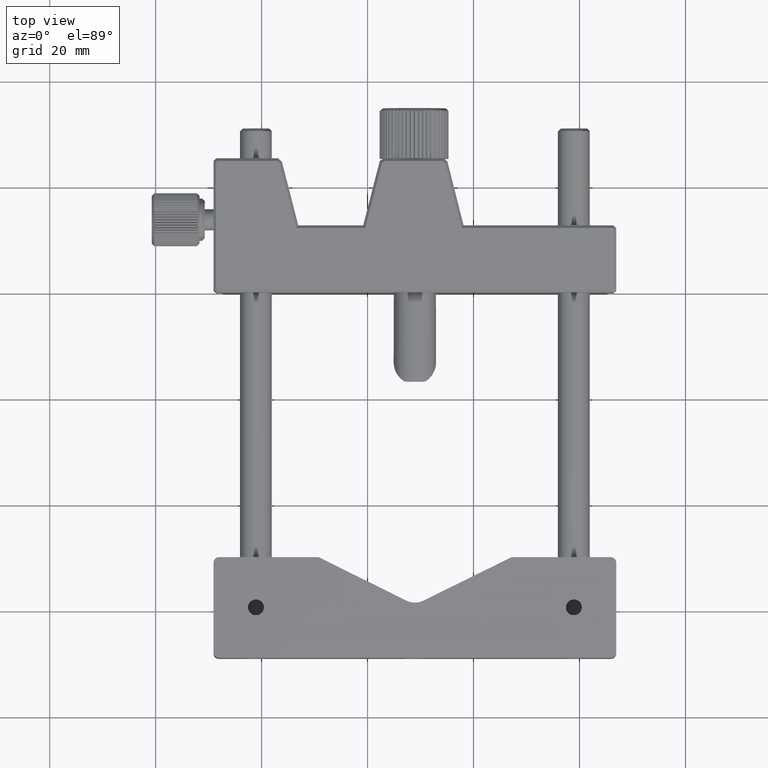
[diagram: clean part render]
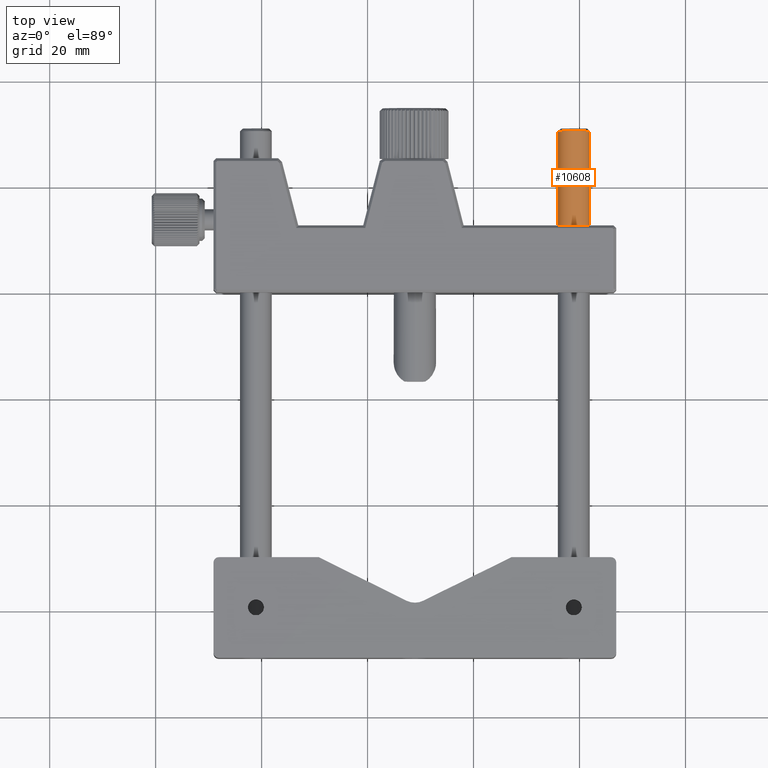
[diagram: same view with one face highlighted and labeled with its STEP entity id]
A machine part, top view. The second image highlights one B-rep face of the part: STEP entity #10608.
In plain terms, the highlighted cylindrical surface (edge-blend (fillet) strip) has radius 3 mm, axis along (0, 1, -0).
Its self-contained STEP definition (entity closure, byte-faithful):
#304 = CARTESIAN_POINT ( 'NONE',  ( 6.659892675158185504, 74.98886477512959914, 0.1416523706789302450 ) ) ;
#584 = VERTEX_POINT ( 'NONE', #304 ) ;
#747 = VECTOR ( 'NONE', #12673, 1000.000000000000000 ) ;
#857 = VERTEX_POINT ( 'NONE', #1094 ) ;
#1094 = CARTESIAN_POINT ( 'NONE',  ( 0.6665848719893747720, 57.13886477512959772, -0.1416523706789316328 ) ) ;
#1193 = LINE ( 'NONE', #16115, #13350 ) ;
#1650 = ORIENTED_EDGE ( 'NONE', *, *, #8563, .T. ) ;
#2835 = DIRECTION ( 'NONE',  ( -0.9988846338614685294, 0.000000000000000000, -0.04721745689297691950 ) ) ;
#3406 = EDGE_CURVE ( 'NONE', #584, #7832, #5265, .T. ) ;
#3710 = LINE ( 'NONE', #10162, #747 ) ;
#4813 = EDGE_CURVE ( 'NONE', #857, #7832, #1193, .T. ) ;
#5265 = CIRCLE ( 'NONE', #7615, 2.999999999999999112 ) ;
#5779 = ORIENTED_EDGE ( 'NONE', *, *, #15867, .T. ) ;
#5808 = CARTESIAN_POINT ( 'NONE',  ( 6.659892675158185504, 57.13886477512959772, 0.1416523706789302450 ) ) ;
#6582 = FACE_OUTER_BOUND ( 'NONE', #11763, .T. ) ;
#6742 = CARTESIAN_POINT ( 'NONE',  ( 3.663238773573780360, -23.51113522487050389, -8.673617379884030542E-16 ) ) ;
#6814 = CYLINDRICAL_SURFACE ( 'NONE', #9353, 2.999999999999998668 ) ;
#7055 = DIRECTION ( 'NONE',  ( 1.267838108800509999E-32, 1.000000000000000000, 1.378887143529729752E-16 ) ) ;
#7501 = DIRECTION ( 'NONE',  ( 0.000000000000000000, -1.000000000000000000, 0.000000000000000000 ) ) ;
#7615 = AXIS2_PLACEMENT_3D ( 'NONE', #15226, #7501, #8801 ) ;
#7737 = ORIENTED_EDGE ( 'NONE', *, *, #4813, .F. ) ;
#7832 = VERTEX_POINT ( 'NONE', #12464 ) ;
#8563 = EDGE_CURVE ( 'NONE', #857, #9978, #14492, .T. ) ;
#8801 = DIRECTION ( 'NONE',  ( -0.9988846338614684184, 0.000000000000000000, -0.04721745689297741216 ) ) ;
#9353 = AXIS2_PLACEMENT_3D ( 'NONE', #6742, #12921, #2835 ) ;
#9867 = ORIENTED_EDGE ( 'NONE', *, *, #3406, .T. ) ;
#9978 = VERTEX_POINT ( 'NONE', #5808 ) ;
#10162 = CARTESIAN_POINT ( 'NONE',  ( 6.659892675158184616, -23.51113522487050389, 0.1416523706789302173 ) ) ;
#10608 = ADVANCED_FACE ( 'NONE', ( #6582 ), #6814, .T. ) ;
#11141 = DIRECTION ( 'NONE',  ( 1.305296633733332071E-20, 1.000000000000000000, -2.761353185586879829E-19 ) ) ;
#11763 = EDGE_LOOP ( 'NONE', ( #1650, #5779, #9867, #7737 ) ) ;
#12027 = CARTESIAN_POINT ( 'NONE',  ( 3.663238773573780360, 57.13886477512959772, -8.896320514301608892E-16 ) ) ;
#12464 = CARTESIAN_POINT ( 'NONE',  ( 0.6665848719893761043, 74.98886477512959914, -0.1416523706789338255 ) ) ;
#12673 = DIRECTION ( 'NONE',  ( 1.305296633733332071E-20, 1.000000000000000000, -2.761353185586879829E-19 ) ) ;
#12921 = DIRECTION ( 'NONE',  ( 1.305296633733332071E-20, 1.000000000000000000, -2.761353185586879829E-19 ) ) ;
#13350 = VECTOR ( 'NONE', #11141, 1000.000000000000000 ) ;
#13705 = AXIS2_PLACEMENT_3D ( 'NONE', #12027, #7055, #14791 ) ;
#14492 = CIRCLE ( 'NONE', #13705, 3.000000000000000000 ) ;
#14791 = DIRECTION ( 'NONE',  ( 0.000000000000000000, 0.000000000000000000, 1.000000000000000000 ) ) ;
#15226 = CARTESIAN_POINT ( 'NONE',  ( 3.663238773573780360, 74.98886477512959914, -1.613292832658430006E-15 ) ) ;
#15867 = EDGE_CURVE ( 'NONE', #9978, #584, #3710, .T. ) ;
#16115 = CARTESIAN_POINT ( 'NONE',  ( 0.6665848719893761043, -23.51113522487050389, -0.1416523706789315773 ) ) ;